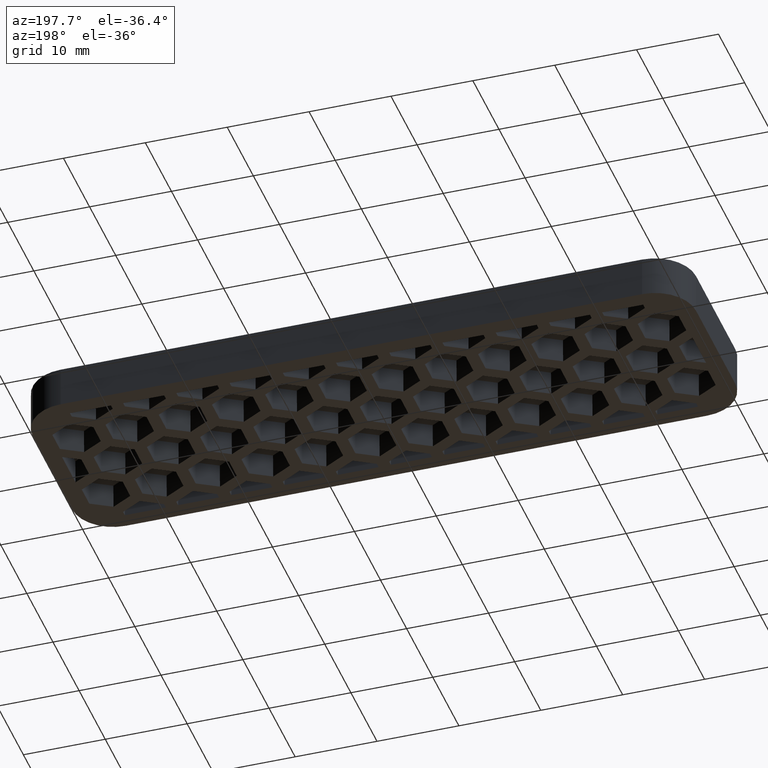
[diagram: clean part render]
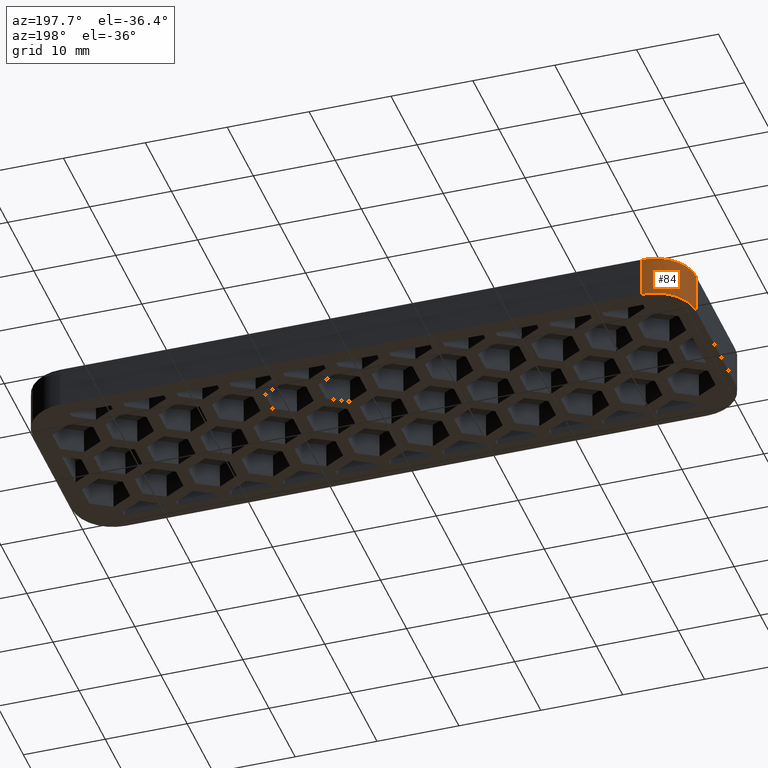
[diagram: same view with one face highlighted and labeled with its STEP entity id]
A machine part, auxiliary view. The second image highlights one B-rep face of the part: STEP entity #84.
In plain terms, the highlighted cylindrical surface (partial cylindrical patch) has radius 5 mm, axis along (-0, 0, 1).
Its self-contained STEP definition (entity closure, byte-faithful):
#84 = ADVANCED_FACE( '', ( #594 ), #595, .T. );
#594 = FACE_OUTER_BOUND( '', #1530, .T. );
#595 = CYLINDRICAL_SURFACE( '', #1531, 5.00000000000000 );
#1530 = EDGE_LOOP( '', ( #2811, #2812, #2813, #2814 ) );
#1531 = AXIS2_PLACEMENT_3D( '', #2815, #2816, #2817 );
#2811 = ORIENTED_EDGE( '', *, *, #6202, .F. );
#2812 = ORIENTED_EDGE( '', *, *, #6261, .F. );
#2813 = ORIENTED_EDGE( '', *, *, #5889, .T. );
#2814 = ORIENTED_EDGE( '', *, *, #6260, .T. );
#2815 = CARTESIAN_POINT( '', ( -35.5000000000000, 7.50000000000001, 99.3873957580092 ) );
#2816 = DIRECTION( '', ( -1.60751816480226E-016, 1.81794180051289E-016, 1.00000000000000 ) );
#2817 = DIRECTION( '', ( -1.00000000000000, -5.90573087550522E-032, -1.60751816480226E-016 ) );
#5889 = EDGE_CURVE( '', #6999, #6997, #7000, .T. );
#6202 = EDGE_CURVE( '', #7617, #7611, #7619, .T. );
#6260 = EDGE_CURVE( '', #6997, #7611, #7733, .T. );
#6261 = EDGE_CURVE( '', #6999, #7617, #7734, .T. );
#6997 = VERTEX_POINT( '', #8836 );
#6999 = VERTEX_POINT( '', #8839 );
#7000 = CIRCLE( '', #8840, 5.00000000000000 );
#7611 = VERTEX_POINT( '', #9752 );
#7617 = VERTEX_POINT( '', #9759 );
#7619 = CIRCLE( '', #9762, 5.00000000000000 );
#7733 = LINE( '', #9933, #9934 );
#7734 = LINE( '', #9935, #9936 );
#8836 = CARTESIAN_POINT( '', ( -35.5000000000000, 12.5000000000000, 4.99999999999999 ) );
#8839 = CARTESIAN_POINT( '', ( -40.5000000000000, 7.50000000000001, 4.99999999999999 ) );
#8840 = AXIS2_PLACEMENT_3D( '', #11723, #11724, #11725 );
#9752 = CARTESIAN_POINT( '', ( -35.5000000000000, 12.5000000000000, -1.46431667789534E-014 ) );
#9759 = CARTESIAN_POINT( '', ( -40.5000000000000, 7.50000000000001, -1.43370151904978E-014 ) );
#9762 = AXIS2_PLACEMENT_3D( '', #12056, #12057, #12058 );
#9933 = CARTESIAN_POINT( '', ( -35.5000000000000, 12.5000000000000, 99.3873957580092 ) );
#9934 = VECTOR( '', #12116, 1000.00000000000 );
#9935 = CARTESIAN_POINT( '', ( -40.5000000000000, 7.50000000000001, 99.3873957580092 ) );
#9936 = VECTOR( '', #12117, 1000.00000000000 );
#11723 = CARTESIAN_POINT( '', ( -35.5000000000000, 7.50000000000000, 4.99999999999999 ) );
#11724 = DIRECTION( '', ( 0.000000000000000, -6.12303176911189E-017, -1.00000000000000 ) );
#11725 = DIRECTION( '', ( 0.000000000000000, 1.00000000000000, -6.12303176911189E-017 ) );
#12056 = CARTESIAN_POINT( '', ( -35.5000000000000, 7.49999999999999, -1.43370151904978E-014 ) );
#12057 = DIRECTION( '', ( 0.000000000000000, -6.12303176911189E-017, -1.00000000000000 ) );
#12058 = DIRECTION( '', ( 0.000000000000000, 1.00000000000000, -6.12303176911189E-017 ) );
#12116 = DIRECTION( '', ( 1.60751816480226E-016, -1.81794180051289E-016, -1.00000000000000 ) );
#12117 = DIRECTION( '', ( 1.60751816480226E-016, -1.81794180051289E-016, -1.00000000000000 ) );